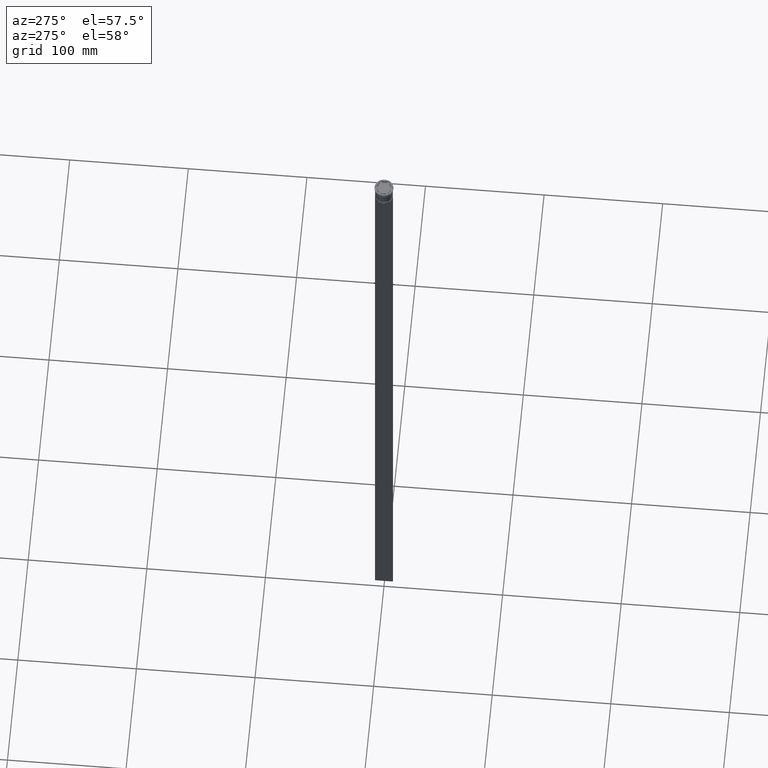
[diagram: clean part render]
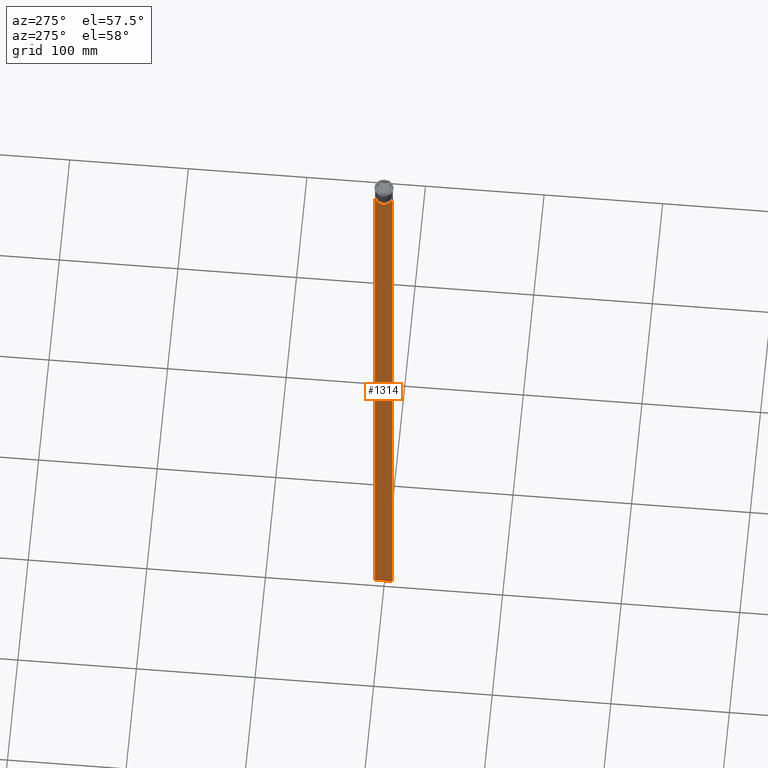
[diagram: same view with one face highlighted and labeled with its STEP entity id]
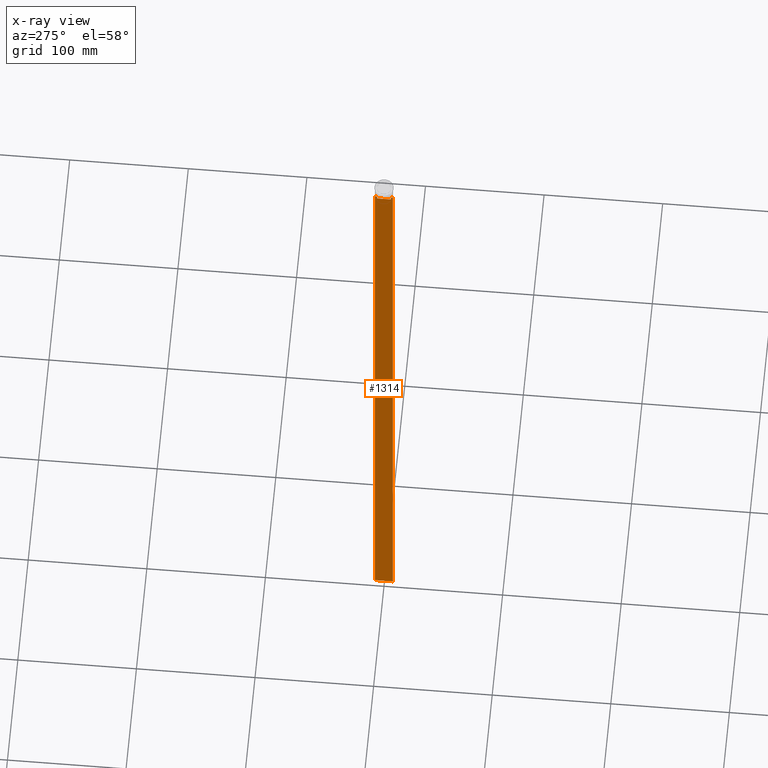
[diagram: x-ray of the same camera — body ghosted, the highlighted face saturated]
A machine part, auxiliary view. The second image highlights one B-rep face of the part: STEP entity #1314.
The next image is the same camera in x-ray: the body ghosted, the highlighted face saturated — about 0% of this face is hidden behind the body in this view.
In plain terms, the highlighted planar face has unit normal (-1, 0, 0).
Its self-contained STEP definition (entity closure, byte-faithful):
#8 = FACE_OUTER_BOUND ( 'NONE', #1990, .T. ) ;
#15 = EDGE_CURVE ( 'NONE', #677, #56, #668, .T. ) ;
#23 = DIRECTION ( 'NONE',  ( 0.000000000000000000, 0.000000000000000000, 1.000000000000000000 ) ) ;
#39 = CARTESIAN_POINT ( 'NONE',  ( -0.5000000000000000000, 7.500000000000002665, -14.00000000000000178 ) ) ;
#46 = CARTESIAN_POINT ( 'NONE',  ( -0.5000000000000000000, 5.878775382679625849, -14.50000000000000000 ) ) ;
#56 = VERTEX_POINT ( 'NONE', #1961 ) ;
#65 = DIRECTION ( 'NONE',  ( 0.000000000000000000, 0.000000000000000000, -1.000000000000000000 ) ) ;
#79 = CARTESIAN_POINT ( 'NONE',  ( -0.5000000000000000000, 7.383088784512886527, -14.00000000000000178 ) ) ;
#91 = EDGE_CURVE ( 'NONE', #667, #221, #1661, .T. ) ;
#101 = CARTESIAN_POINT ( 'NONE',  ( -0.5000000000000000000, -5.878775382679625849, 0.000000000000000000 ) ) ;
#112 = LINE ( 'NONE', #101, #497 ) ;
#204 = CARTESIAN_POINT ( 'NONE',  ( -0.5000000000000000000, -7.499999999999999112, -14.00000000000000178 ) ) ;
#221 = VERTEX_POINT ( 'NONE', #46 ) ;
#232 = ORIENTED_EDGE ( 'NONE', *, *, #91, .F. ) ;
#249 = CARTESIAN_POINT ( 'NONE',  ( -0.5000000000000000000, -7.499999999999999112, 1.033296378372908997 ) ) ;
#252 = CARTESIAN_POINT ( 'NONE',  ( -0.5000000000000000000, -6.046019991840948293, -14.33335703538585726 ) ) ;
#287 = EDGE_CURVE ( 'NONE', #341, #1585, #1128, .T. ) ;
#341 = VERTEX_POINT ( 'NONE', #676 ) ;
#393 = VERTEX_POINT ( 'NONE', #79 ) ;
#396 = CARTESIAN_POINT ( 'NONE',  ( -0.5000000000000000000, 5.878775382679625849, -14.50000000000000000 ) ) ;
#465 = DIRECTION ( 'NONE',  ( 0.000000000000000000, -1.000000000000000000, 0.000000000000000000 ) ) ;
#467 = CARTESIAN_POINT ( 'NONE',  ( -0.5000000000000000000, -5.878775382679625849, -14.50000000000000000 ) ) ;
#496 = CARTESIAN_POINT ( 'NONE',  ( -0.5000000000000000000, -6.380438856379706536, -14.00000000000000178 ) ) ;
#497 = VECTOR ( 'NONE', #1456, 1000.000000000000000 ) ;
#510 = CARTESIAN_POINT ( 'NONE',  ( -0.5000000000000000000, 5.878775382679625849, -17.00000000000000000 ) ) ;
#550 = VERTEX_POINT ( 'NONE', #1367 ) ;
#581 = VECTOR ( 'NONE', #1980, 1000.000000000000000 ) ;
#586 = DIRECTION ( 'NONE',  ( -1.000000000000000000, 0.000000000000000000, 0.000000000000000000 ) ) ;
#610 = CARTESIAN_POINT ( 'NONE',  ( -0.5000000000000000000, 6.046020074006152711, -14.33335695351623151 ) ) ;
#653 = VECTOR ( 'NONE', #2136, 1000.000000000000000 ) ;
#667 = VERTEX_POINT ( 'NONE', #2010 ) ;
#668 = LINE ( 'NONE', #1450, #1862 ) ;
#676 = CARTESIAN_POINT ( 'NONE',  ( -0.5000000000000000000, -5.878775382679625849, -14.50000000000000000 ) ) ;
#677 = VERTEX_POINT ( 'NONE', #1997 ) ;
#688 = ORIENTED_EDGE ( 'NONE', *, *, #1822, .T. ) ;
#690 = AXIS2_PLACEMENT_3D ( 'NONE', #2143, #586, #23 ) ;
#774 = CARTESIAN_POINT ( 'NONE',  ( -0.5000000000000000000, -7.499999999999999112, -614.0000000000000000 ) ) ;
#779 = DIRECTION ( 'NONE',  ( 0.000000000000000000, 0.000000000000000000, -1.000000000000000000 ) ) ;
#790 = CARTESIAN_POINT ( 'NONE',  ( -0.5000000000000000000, 5.878775382679625849, 0.000000000000000000 ) ) ;
#827 = CARTESIAN_POINT ( 'NONE',  ( -0.5000000000000000000, -7.499999999999999112, -14.00000000000000178 ) ) ;
#846 = CARTESIAN_POINT ( 'NONE',  ( -0.5000000000000000000, -6.213239311785844876, -14.16668851110870087 ) ) ;
#848 = EDGE_CURVE ( 'NONE', #2177, #550, #2285, .T. ) ;
#876 = EDGE_CURVE ( 'NONE', #895, #393, #2111, .T. ) ;
#895 = VERTEX_POINT ( 'NONE', #39 ) ;
#960 = CARTESIAN_POINT ( 'NONE',  ( -0.5000000000000000000, 7.500000000000002665, 1.033296378372908997 ) ) ;
#991 = ORIENTED_EDGE ( 'NONE', *, *, #2022, .F. ) ;
#1030 = ORIENTED_EDGE ( 'NONE', *, *, #287, .F. ) ;
#1033 = LINE ( 'NONE', #827, #581 ) ;
#1085 = LINE ( 'NONE', #1709, #2074 ) ;
#1128 = B_SPLINE_CURVE_WITH_KNOTS ( 'NONE', 3,
 ( #467, #252, #846, #1230 ),
 .UNSPECIFIED., .F., .F.,
 ( 4, 4 ),
 ( 0.02765270321082434479, 0.02836198271238431559 ),
 .UNSPECIFIED. ) ;
#1139 = CARTESIAN_POINT ( 'NONE',  ( -0.5000000000000000000, -7.499999999999999112, -614.0000000000000000 ) ) ;
#1149 = VECTOR ( 'NONE', #465, 1000.000000000000000 ) ;
#1163 = CARTESIAN_POINT ( 'NONE',  ( -0.5000000000000000000, 6.380438856379706536, -14.00000000000000178 ) ) ;
#1176 = DIRECTION ( 'NONE',  ( 0.000000000000000000, 0.000000000000000000, -1.000000000000000000 ) ) ;
#1177 = EDGE_CURVE ( 'NONE', #1585, #677, #1085, .T. ) ;
#1179 = ORIENTED_EDGE ( 'NONE', *, *, #1177, .F. ) ;
#1230 = CARTESIAN_POINT ( 'NONE',  ( -0.5000000000000000000, -6.380438856379706536, -14.00000000000000178 ) ) ;
#1232 = VECTOR ( 'NONE', #1176, 1000.000000000000000 ) ;
#1305 = ORIENTED_EDGE ( 'NONE', *, *, #15, .F. ) ;
#1314 = ADVANCED_FACE ( 'NONE', ( #8 ), #2480, .T. ) ;
#1342 = DIRECTION ( 'NONE',  ( 0.000000000000000000, -1.000000000000000000, 0.000000000000000000 ) ) ;
#1367 = CARTESIAN_POINT ( 'NONE',  ( -0.5000000000000000000, 7.500000000000002665, -614.0000000000000000 ) ) ;
#1396 = VECTOR ( 'NONE', #779, 1000.000000000000000 ) ;
#1450 = CARTESIAN_POINT ( 'NONE',  ( -0.5000000000000000000, -7.499999999999999112, -14.00000000000000178 ) ) ;
#1456 = DIRECTION ( 'NONE',  ( -0.000000000000000000, -0.000000000000000000, 1.000000000000000000 ) ) ;
#1484 = DIRECTION ( 'NONE',  ( 0.000000000000000000, -1.000000000000000000, 0.000000000000000000 ) ) ;
#1487 = ORIENTED_EDGE ( 'NONE', *, *, #876, .F. ) ;
#1585 = VERTEX_POINT ( 'NONE', #496 ) ;
#1602 = VERTEX_POINT ( 'NONE', #2267 ) ;
#1661 = B_SPLINE_CURVE_WITH_KNOTS ( 'NONE', 3,
 ( #1163, #1970, #610, #396 ),
 .UNSPECIFIED., .F., .F.,
 ( 4, 4 ),
 ( 0.01087727669788152163, 0.01158556069794289788 ),
 .UNSPECIFIED. ) ;
#1709 = CARTESIAN_POINT ( 'NONE',  ( -0.5000000000000000000, -7.499999999999999112, -14.00000000000000178 ) ) ;
#1764 = EDGE_CURVE ( 'NONE', #221, #2486, #2099, .T. ) ;
#1773 = CARTESIAN_POINT ( 'NONE',  ( -0.5000000000000000000, 5.899999999999998579, -17.00000000000000000 ) ) ;
#1799 = LINE ( 'NONE', #1773, #1149 ) ;
#1806 = ORIENTED_EDGE ( 'NONE', *, *, #2293, .F. ) ;
#1822 = EDGE_CURVE ( 'NONE', #895, #550, #2308, .T. ) ;
#1862 = VECTOR ( 'NONE', #2259, 1000.000000000000000 ) ;
#1945 = EDGE_CURVE ( 'NONE', #2486, #1602, #1799, .T. ) ;
#1961 = CARTESIAN_POINT ( 'NONE',  ( -0.5000000000000000000, -7.499999999999999112, -14.00000000000000178 ) ) ;
#1970 = CARTESIAN_POINT ( 'NONE',  ( -0.5000000000000000000, 6.213239387491007015, -14.16668843563492430 ) ) ;
#1980 = DIRECTION ( 'NONE',  ( 0.000000000000000000, -1.000000000000000000, 0.000000000000000000 ) ) ;
#1988 = ORIENTED_EDGE ( 'NONE', *, *, #1945, .F. ) ;
#1990 = EDGE_LOOP ( 'NONE', ( #232, #1806, #1487, #688, #2221, #991, #1305, #1179, #1030, #2097, #1988, #2458 ) ) ;
#1997 = CARTESIAN_POINT ( 'NONE',  ( -0.5000000000000000000, -7.383088784512886527, -14.00000000000000178 ) ) ;
#2010 = CARTESIAN_POINT ( 'NONE',  ( -0.5000000000000000000, 6.380438856379706536, -14.00000000000000178 ) ) ;
#2022 = EDGE_CURVE ( 'NONE', #56, #2177, #2173, .T. ) ;
#2071 = VECTOR ( 'NONE', #1342, 1000.000000000000000 ) ;
#2074 = VECTOR ( 'NONE', #1484, 1000.000000000000000 ) ;
#2084 = EDGE_CURVE ( 'NONE', #1602, #341, #112, .T. ) ;
#2097 = ORIENTED_EDGE ( 'NONE', *, *, #2084, .F. ) ;
#2099 = LINE ( 'NONE', #790, #1232 ) ;
#2111 = LINE ( 'NONE', #204, #2071 ) ;
#2136 = DIRECTION ( 'NONE',  ( 0.000000000000000000, 1.000000000000000000, 0.000000000000000000 ) ) ;
#2143 = CARTESIAN_POINT ( 'NONE',  ( -0.5000000000000000000, -7.499999999999999112, 1.033296378372908997 ) ) ;
#2173 = LINE ( 'NONE', #249, #2473 ) ;
#2177 = VERTEX_POINT ( 'NONE', #774 ) ;
#2221 = ORIENTED_EDGE ( 'NONE', *, *, #848, .F. ) ;
#2259 = DIRECTION ( 'NONE',  ( 0.000000000000000000, -1.000000000000000000, 0.000000000000000000 ) ) ;
#2267 = CARTESIAN_POINT ( 'NONE',  ( -0.5000000000000000000, -5.878775382679625849, -17.00000000000000000 ) ) ;
#2285 = LINE ( 'NONE', #1139, #653 ) ;
#2293 = EDGE_CURVE ( 'NONE', #393, #667, #1033, .T. ) ;
#2308 = LINE ( 'NONE', #960, #1396 ) ;
#2458 = ORIENTED_EDGE ( 'NONE', *, *, #1764, .F. ) ;
#2473 = VECTOR ( 'NONE', #65, 1000.000000000000000 ) ;
#2480 = PLANE ( 'NONE',  #690 ) ;
#2486 = VERTEX_POINT ( 'NONE', #510 ) ;